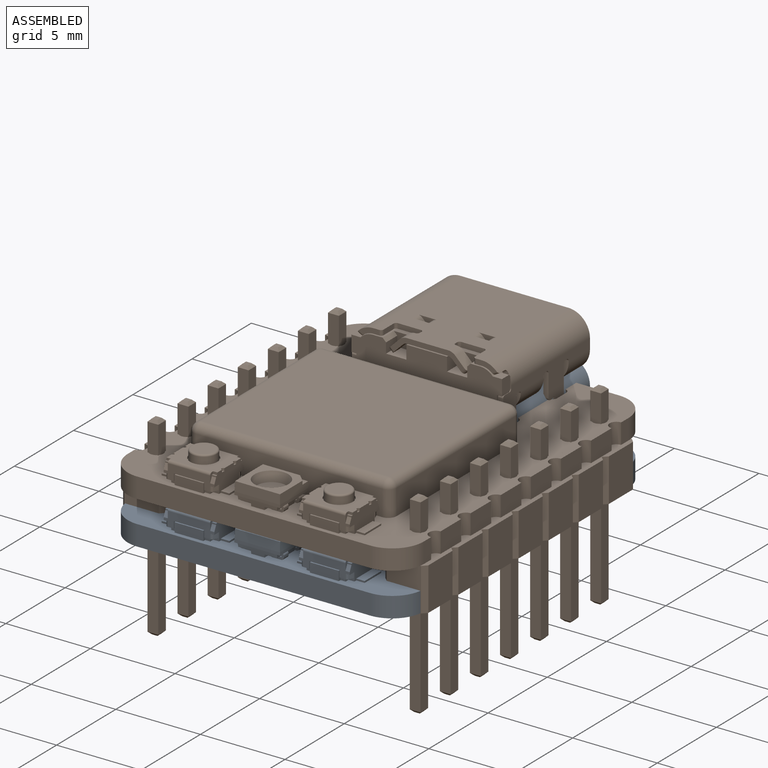
[diagram: assembled view]
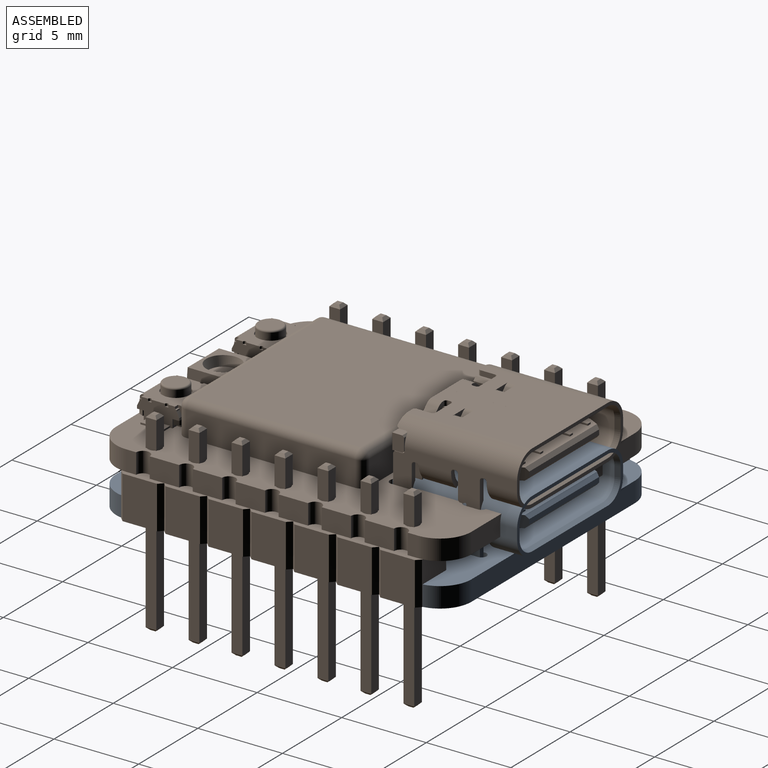
[diagram: assembled view, second angle]
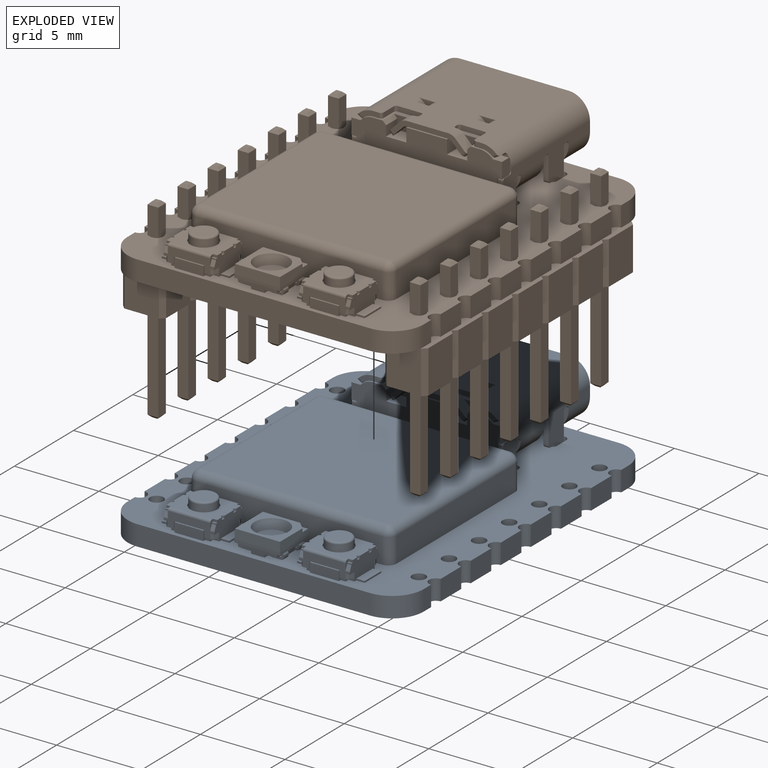
[diagram: exploded view]
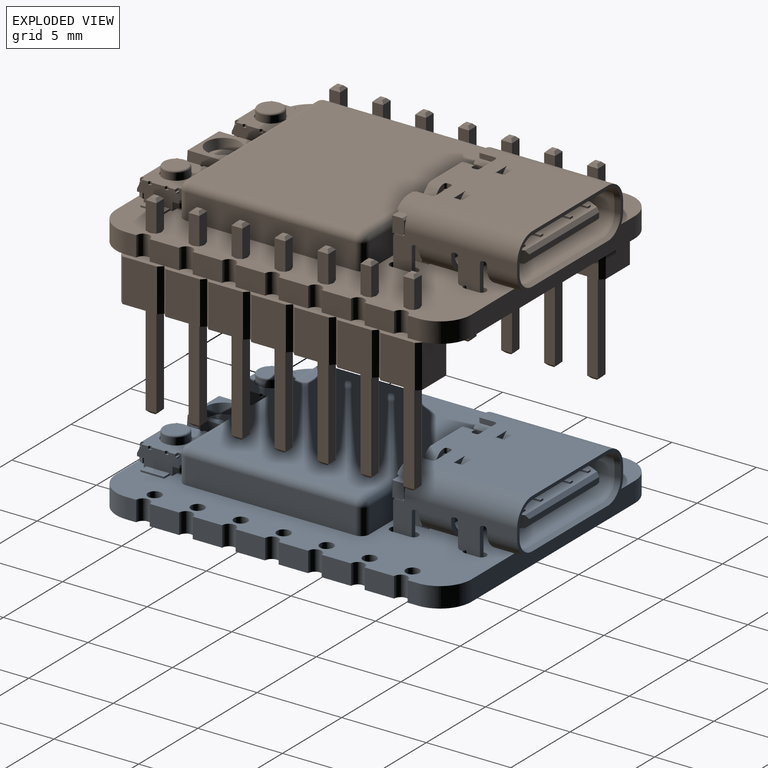
[diagram: exploded view, second angle]
FCSTD DOCUMENT  (FreeCAD 1.0R39319 (Git))
Label: Seeed_Studio_Xiao_RP2040
License: All rights reserved
LicenseURL: https://en.wikipedia.org/wiki/All_rights_reserved
objects: Part::Feature×51, Sketcher::SketchObject×17, App::Part×14, PartDesign::Pad×13, PartDesign::Mirrored×8, PartDesign::Body×7, PartDesign::SubShapeBinder×6, PartDesign::Pocket×5, Part::FeaturePython×4, PartDesign::Plane×3, PartDesign::LinearPattern×3, PartDesign::MultiTransform×3, Part::Mirroring×3, Part::MultiFuse×3, App::DocumentObjectGroup×2, PartDesign::Fillet×1, App::Link×1, PartDesign::Chamfer×1
note: 199 computed .brp shape members not serialized (recipe doc carries the construction recipe); baked Part::Feature solids carry a one-line shape summary decoded from their .brp

FEATURE [Sketcher::SketchObject] Sketch
  ArcFitTolerance = 1e-06
  AttachmentSupport = -> [XY_Plane001]
  FullyConstrained = true
  MakeInternals = false
  MapMode = 5
  sketch-geometry (10):
    g0: LineSegment StartX=-6.87 StartY=-10.5 StartZ=0 EndX=6.87 EndY=-10.5 EndZ=0
    g1: LineSegment StartX=8.75 StartY=-8.62 StartZ=0 EndX=8.75 EndY=8.62 EndZ=0
    g2: LineSegment StartX=6.87 StartY=10.5 StartZ=0 EndX=-6.87 EndY=10.5 EndZ=0
    g3: LineSegment StartX=-8.75 StartY=8.62 StartZ=0 EndX=-8.75 EndY=-8.62 EndZ=0
    g4: ArcOfCircle CenterX=-6.87 CenterY=-8.62 CenterZ=0 NormalX=0 NormalY=0 NormalZ=1 AngleXU=0 Radius=1.88 StartAngle=3.14159 EndAngle=4.71239
    g5: ArcOfCircle CenterX=6.87 CenterY=-8.62 CenterZ=0 NormalX=0 NormalY=0 NormalZ=1 AngleXU=0 Radius=1.88 StartAngle=4.71239 EndAngle=6.28319
    g6: ArcOfCircle CenterX=6.87 CenterY=8.62 CenterZ=0 NormalX=0 NormalY=0 NormalZ=1 AngleXU=0 Radius=1.88 StartAngle=4.83e-14 EndAngle=1.5708
    g7: ArcOfCircle CenterX=-6.87 CenterY=8.62 CenterZ=0 NormalX=0 NormalY=0 NormalZ=1 AngleXU=0 Radius=1.88 StartAngle=1.5708 EndAngle=3.14159
    g8: GeomPoint [constr] X=8.75 Y=10.5 Z=0
    g9: GeomPoint [constr] X=0 Y=0 Z=0
  constraints (22):
    c: Tangent(g0,g4) = -1.5708
    c: Tangent(g0,g5) = -1.5708
    c: Tangent(g1,g5) = -1.5708
    c: Tangent(g1,g6) = -1.5708
    c: Tangent(g2,g6) = -1.5708
    c: Tangent(g2,g7) = -1.5708
    c: Tangent(g3,g7) = -1.5708
    c: Tangent(g3,g4) = -1.5708
    c: Horizontal(g0)
    c: Horizontal(g2)
    c: Vertical(g1)
    c: Vertical(g3)
    c: Equal(g4,g5)
    c: Equal(g5,g6)
    c: Equal(g6,g7)
    c: Symmetric(g2,g0,g9)
    c: PointOnObject(g8,g1)
    c: PointOnObject(g8,g2)
    c: Distance(g1,g3) = 17.5
    c: Distance(g0,g2) = 21
    c: Radius(g5) = 1.88
    c: Coincident(g9,g-1)
FEATURE [PartDesign::Pad] Pad  label="Pad-Main"
  Direction = (0,0,1)
  Length = 1.2
  Length2 = 10
  Profile = -> Sketch
  ReferenceAxis = -> Sketch [N_Axis]
  Refine = true
  Suppressed = false
  Type = 0
FEATURE [PartDesign::SubShapeBinder] Binder
  BindCopyOnChange = 0
  BindMode = 0
  ClaimChildren = false
  Context = -> Part [Part001.Body001.Binder.]
  Fuse = false
  MakeFace = true
  OffsetFill = false
  OffsetIntersection = false
  OffsetJoinType = 0
  OffsetOpenResult = false
  PartialLoad = false
  Refine = true
  Relative = true
  Support = -> [Body]
  _Version = 2
FEATURE [Sketcher::SketchObject] Sketch001
  ArcFitTolerance = 1e-06
  AttachmentSupport = -> [XY_Plane002]
  ExternalGeometry = -> [Binder]
  FullyConstrained = true
  MakeInternals = false
  MapMode = 5
  sketch-geometry (7):
    g0: LineSegment StartX=-8.75 StartY=8.62 StartZ=0 EndX=-7.75 EndY=8.62 EndZ=0
    g1: LineSegment StartX=-8.75 StartY=8.62 StartZ=0 EndX=-8.75 EndY=8.02 EndZ=0
    g2: LineSegment StartX=-8.75 StartY=7.22 StartZ=0 EndX=-8.75 EndY=6.62 EndZ=0
    g3: LineSegment StartX=-8.75 StartY=6.62 StartZ=0 EndX=-7.75 EndY=6.62 EndZ=0
    g4: ArcOfCircle CenterX=-8.75 CenterY=7.62 CenterZ=0 NormalX=0 NormalY=0 NormalZ=1 AngleXU=0 Radius=0.4 StartAngle=4.71239 EndAngle=7.85398
    g5: ArcOfCircle CenterX=-7.75 CenterY=7.62 CenterZ=0 NormalX=0 NormalY=0 NormalZ=1 AngleXU=0 Radius=1 StartAngle=4.71239 EndAngle=7.85398
    g6: Circle CenterX=-7.75 CenterY=7.62 CenterZ=0 NormalX=0 NormalY=0 NormalZ=1 AngleXU=0 Radius=0.4
  constraints (19):
    c: Horizontal(g0)
    c: Coincident(g1,g0)
    c: PointOnObject(g1,g-4)
    c: PointOnObject(g2,g-4)
    c: PointOnObject(g2,g-4)
    c: Coincident(g3,g2)
    c: Horizontal(g3)
    c: Coincident(g4,g1)
    c: Coincident(g4,g2)
    c: Tangent(g5,g3) = -1.5708
    c: Tangent(g5,g0) = 1.5708
    c: Perpendicular(g4,g2)
    c: Radius(g5) = 1
    c: Coincident(g6,g5)
    c: Diameter(g6) = 0.8
    c: Equal(g6,g4)
    c: Coincident(g0,g-4)
    c: Horizontal(g4,g5)
    c: DistanceX(g0,g0) = 1
FEATURE [PartDesign::Pad] Pad001  label="Pad-Bottom"
  Direction = (0,0,1)
  Length = 0.035
  Length2 = 10
  Profile = -> Sketch001
  ReferenceAxis = -> Sketch001 [N_Axis]
  Refine = true
  Suppressed = false
  Type = 0
FEATURE [Sketcher::SketchObject] Sketch002
  ArcFitTolerance = 1e-06
  AttachmentSupport = -> [XY_Plane002]
  ExternalGeometry = -> [Pad001]
  FullyConstrained = true
  MakeInternals = false
  MapMode = 5
  sketch-geometry (9):
    g0: LineSegment StartX=-8.75 StartY=6.62 StartZ=0 EndX=-8.75 EndY=7.22 EndZ=0
    g1: LineSegment StartX=-8.75 StartY=8.02 StartZ=0 EndX=-8.75 EndY=8.62 EndZ=0
    g2: LineSegment StartX=-8.75 StartY=8.62 StartZ=0 EndX=-8.715 EndY=8.62 EndZ=0
    g3: LineSegment StartX=-8.715 StartY=8.62 StartZ=0 EndX=-8.715 EndY=8.05359 EndZ=0
    g4: LineSegment StartX=-8.715 StartY=7.18641 StartZ=0 EndX=-8.715 EndY=6.62 EndZ=0
    g5: LineSegment StartX=-8.715 StartY=6.62 StartZ=0 EndX=-8.75 EndY=6.62 EndZ=0
    g6: ArcOfCircle CenterX=-8.75 CenterY=7.62 CenterZ=0 NormalX=0 NormalY=0 NormalZ=1 AngleXU=0 Radius=0.4 StartAngle=4.71239 EndAngle=7.85398
    g7: ArcOfCircle CenterX=-8.75 CenterY=7.62 CenterZ=0 NormalX=0 NormalY=0 NormalZ=1 AngleXU=0 Radius=0.435 StartAngle=4.79294 EndAngle=7.77343
    g8: LineSegment [constr] StartX=-8.315 StartY=7.62 StartZ=0 EndX=-8.35 EndY=7.62 EndZ=0
  constraints (25):
    c: Coincident(g0,g-5)
    c: Coincident(g0,g-3)
    c: Coincident(g1,g-3)
    c: Coincident(g1,g-4)
    c: Coincident(g2,g1)
    c: Coincident(g3,g2)
    c: Vertical(g3)
    c: Vertical(g4)
    c: Coincident(g5,g4)
    c: Coincident(g5,g0)
    c: Coincident(g6,g1)
    c: Coincident(g6,g0)
    c: Coincident(g7,g3)
    c: Coincident(g7,g4)
    c: Horizontal(g2)
    c: Horizontal(g5)
    c: Coincident(g7,g-3)
    c: Coincident(g7,g6)
    c: DistanceX(g5,g5) = 0.035
    c: Equal(g5,g2)
    c: PointOnObject(g8,g7)
    c: PointOnObject(g8,g6)
    c: Perpendicular(g6,g8)
    c: Equal(g8,g2)
    c: Horizontal(g8)
FEATURE [Sketcher::SketchObject] Sketch005
  ArcFitTolerance = 1e-06
  AttachmentSupport = -> [XY_Plane001]
  ExternalGeometry = -> [Pad]
  FullyConstrained = true
  MakeInternals = false
  MapMode = 5
  sketch-geometry (7):
    g0: LineSegment StartX=-8.75 StartY=8.62 StartZ=0 EndX=-7.75 EndY=8.62 EndZ=0
    g1: LineSegment StartX=-8.75 StartY=8.62 StartZ=0 EndX=-8.75 EndY=8.0375 EndZ=0
    g2: LineSegment StartX=-8.75 StartY=7.2025 StartZ=0 EndX=-8.75 EndY=6.62 EndZ=0
    g3: LineSegment StartX=-8.75 StartY=6.62 StartZ=0 EndX=-7.75 EndY=6.62 EndZ=0
    g4: ArcOfCircle CenterX=-8.75 CenterY=7.62 CenterZ=0 NormalX=0 NormalY=0 NormalZ=1 AngleXU=0 Radius=0.4175 StartAngle=4.71239 EndAngle=7.85398
    g5: ArcOfCircle CenterX=-7.75 CenterY=7.62 CenterZ=0 NormalX=0 NormalY=0 NormalZ=1 AngleXU=0 Radius=1 StartAngle=4.71239 EndAngle=7.85398
    g6: Circle CenterX=-7.75 CenterY=7.62 CenterZ=0 NormalX=0 NormalY=0 NormalZ=1 AngleXU=0 Radius=0.4175
  constraints (19):
    c: Horizontal(g0)
    c: Coincident(g1,g0)
    c: Coincident(g3,g2)
    c: Horizontal(g3)
    c: Coincident(g4,g1)
    c: Coincident(g4,g2)
    c: Tangent(g5,g3) = -1.5708
    c: Tangent(g5,g0) = 1.5708
    c: Perpendicular(g4,g2)
    c: Radius(g5) = 1
    c: Coincident(g6,g5)
    c: Diameter(g6) = 0.835
    c: Equal(g6,g4)
    c: Horizontal(g4,g5)
    c: DistanceX(g0,g0) = 1
    c: Vertical(g1)
    c: Vertical(g2)
    c: Perpendicular(g4,g1)
    c: Coincident(g0,g-3)
FEATURE [PartDesign::Plane] DatumPlane
  AttachmentOffset = pos=(0,0,0.6) rot=(0,0,1;0rad)
  AttachmentSupport = -> [XY_Plane001]
  Length = 60
  MapMode = 5
  Placement = pos=(0,0,0.6) rot=(0,0,1;0rad)
  ResizeMode = 0
  Width = 60
FEATURE [Sketcher::SketchObject] Sketch006
  ArcFitTolerance = 1e-06
  AttachmentSupport = -> [XY_Plane001]
  ExternalGeometry = -> [Pad]
  FullyConstrained = true
  MakeInternals = false
  MapMode = 5
  sketch-geometry (7):
    g0: LineSegment StartX=-8.75 StartY=8.62 StartZ=0 EndX=-8.715 EndY=8.62 EndZ=0
    g1: LineSegment StartX=-8.715 StartY=8.62 StartZ=0 EndX=-8.715 EndY=8.05359 EndZ=0
    g2: LineSegment StartX=-8.75 StartY=8.62 StartZ=0 EndX=-8.75 EndY=6.62 EndZ=0
    g3: LineSegment StartX=-8.75 StartY=6.62 StartZ=0 EndX=-8.715 EndY=6.62 EndZ=0
    g4: LineSegment StartX=-8.715 StartY=6.62 StartZ=0 EndX=-8.715 EndY=7.18641 EndZ=0
    g5: Circle CenterX=-7.75 CenterY=7.62 CenterZ=0 NormalX=0 NormalY=0 NormalZ=1 AngleXU=0 Radius=0.435
    g6: ArcOfCircle CenterX=-8.75 CenterY=7.62 CenterZ=0 NormalX=0 NormalY=0 NormalZ=1 AngleXU=0 Radius=0.435 StartAngle=4.79294 EndAngle=7.77343
  constraints (21):
    c: Coincident(g0,g-3)
    c: Horizontal(g0)
    c: Coincident(g1,g0)
    c: Vertical(g1)
    c: Coincident(g2,g0)
    c: PointOnObject(g2,g-3)
    c: Coincident(g3,g2)
    c: Coincident(g4,g3)
    c: Vertical(g4)
    c: Coincident(g6,g1)
    c: Coincident(g6,g4)
    c: PointOnObject(g6,g2)
    c: Equal(g1,g4)
    c: DistanceY(g2,g2) = 2
    c: Distance(g3,g3) = 0.035
    c: Equal(g3,g0)
    c: Diameter(g5) = 0.87
    c: Equal(g5,g6)
    c: Horizontal(g6,g5)
    c: DistanceX(g6,g5) = 1
    c: Horizontal(g3)
FEATURE [PartDesign::Pocket] Pocket  label="Pocket-PadBottom"
  BaseFeature = -> Pad
  Direction = (0,0,-1)
  Length = 0.035
  Length2 = 5
  Profile = -> Sketch005
  ReferenceAxis = -> Sketch005 [N_Axis]
  Refine = true
  Reversed = true
  Suppressed = false
  Type = 0
FEATURE [PartDesign::Pocket] Pocket001  label="Pocket-PadSide"
  BaseFeature = -> Pocket
  Direction = (0,0,-1)
  Length = 0
  Length2 = 5
  Profile = -> Sketch006
  ReferenceAxis = -> Sketch006 [N_Axis]
  Refine = true
  Reversed = true
  Suppressed = false
  Type = 3
  UpToFace = -> Pocket [Face5]
FEATURE [PartDesign::Mirrored] Mirrored
  MirrorPlane = -> DatumPlane
  Refine = true
  Suppressed = false
  TransformMode = 0
FEATURE [PartDesign::LinearPattern] LinearPattern
  Direction = -> Y_Axis001
  Length = 15.24
  Mode = 1
  Occurrences = 7
  Offset = 2.54
  Refine = true
  Reversed = true
  Suppressed = false
  TransformMode = 0
FEATURE [PartDesign::Mirrored] Mirrored001
  MirrorPlane = -> YZ_Plane001
  Refine = true
  Suppressed = false
  TransformMode = 0
FEATURE [PartDesign::MultiTransform] MultiTransform  label="MultiTransform-PadTop+Bottom"
  BaseFeature = -> Pocket001
  Originals = -> [Pocket]
  Refine = true
  Suppressed = false
  TransformMode = 0
  Transformations = -> [Mirrored,LinearPattern,Mirrored001]
FEATURE [PartDesign::LinearPattern] LinearPattern001
  Direction = -> Y_Axis001
  Length = 15.24
  Mode = 1
  Occurrences = 7
  Offset = 2.54
  Refine = true
  Reversed = true
  Suppressed = false
  TransformMode = 0
FEATURE [PartDesign::Mirrored] Mirrored002
  MirrorPlane = -> YZ_Plane001
  Refine = true
  Suppressed = false
  TransformMode = 0
FEATURE [PartDesign::MultiTransform] MultiTransform001  label="MultiTransform-PadSide"
  BaseFeature = -> MultiTransform
  Originals = -> [Pocket001]
  Refine = true
  Suppressed = false
  TransformMode = 0
  Transformations = -> [LinearPattern001,Mirrored002]
FEATURE [PartDesign::Pad] Pad002  label="Pad-Edge"
  BaseFeature = -> Pad001
  Direction = (0,0,1)
  Length = 10
  Length2 = 10
  Profile = -> Sketch002
  ReferenceAxis = -> Sketch002 [N_Axis]
  Refine = true
  Suppressed = false
  Type = 3
  UpToFace = -> MultiTransform001 [Face9]
FEATURE [Sketcher::SketchObject] Sketch003
  ArcFitTolerance = 1e-06
  AttachmentSupport = -> [Binder]
  ExternalGeometry = -> [Binder,Pad002]
  FullyConstrained = true
  MakeInternals = false
  MapMode = 5
  Placement = pos=(0,0,1.2) rot=(0,0,1;0rad)
  sketch-geometry (7):
    g0: LineSegment StartX=-8.75 StartY=8.62 StartZ=0 EndX=-7.75 EndY=8.62 EndZ=0
    g1: LineSegment StartX=-8.75 StartY=8.62 StartZ=0 EndX=-8.75 EndY=8.02 EndZ=0
    g2: LineSegment StartX=-8.75 StartY=7.22 StartZ=0 EndX=-8.75 EndY=6.62 EndZ=0
    g3: LineSegment StartX=-8.75 StartY=6.62 StartZ=0 EndX=-7.75 EndY=6.62 EndZ=0
    g4: ArcOfCircle CenterX=-8.75 CenterY=7.62 CenterZ=0 NormalX=0 NormalY=0 NormalZ=1 AngleXU=0 Radius=0.4 StartAngle=4.71239 EndAngle=7.85398
    g5: ArcOfCircle CenterX=-7.75 CenterY=7.62 CenterZ=0 NormalX=0 NormalY=0 NormalZ=1 AngleXU=0 Radius=1 StartAngle=4.71239 EndAngle=7.85398
    g6: Circle CenterX=-7.75 CenterY=7.62 CenterZ=0 NormalX=0 NormalY=0 NormalZ=1 AngleXU=0 Radius=0.4
  constraints (19):
    c: Horizontal(g0)
    c: Coincident(g1,g0)
    c: PointOnObject(g1,g-4)
    c: PointOnObject(g2,g-4)
    c: PointOnObject(g2,g-4)
    c: Coincident(g3,g2)
    c: Horizontal(g3)
    c: Coincident(g4,g1)
    c: Coincident(g4,g2)
    c: Tangent(g5,g3) = -1.5708
    c: Tangent(g5,g0) = 1.5708
    c: Perpendicular(g4,g2)
    c: Coincident(g6,g5)
    c: Equal(g6,g4)
    c: Coincident(g0,g-4)
    c: Horizontal(g4,g5)
    c: Equal(g5,g-5)
    c: Equal(g0,g-6)
    c: Equal(g-7,g6)
FEATURE [PartDesign::Pad] Pad003  label="Pad-Top"
  BaseFeature = -> Pad002
  Direction = (0,0,1)
  Length = 0.035
  Length2 = 10
  Profile = -> Sketch003
  ReferenceAxis = -> Sketch003 [N_Axis]
  Refine = true
  Reversed = true
  Suppressed = false
  Type = 0
FEATURE [Sketcher::SketchObject] Sketch004
  ArcFitTolerance = 1e-06
  AttachmentSupport = -> [XY_Plane002]
  ExternalGeometry = -> [Pad003]
  FullyConstrained = true
  MakeInternals = false
  MapMode = 5
  sketch-geometry (2):
    g0: Circle CenterX=-7.75 CenterY=7.62 CenterZ=0 NormalX=0 NormalY=0 NormalZ=1 AngleXU=0 Radius=0.4
    g1: Circle CenterX=-7.75 CenterY=7.62 CenterZ=0 NormalX=0 NormalY=0 NormalZ=1 AngleXU=0 Radius=0.435
  constraints (4):
    c: Coincident(g0,g-3)
    c: Equal(g-3,g0)
    c: Coincident(g1,g0)
    c: Distance(g0,g1) = 0.035
FEATURE [PartDesign::Pad] Pad004  label="Pad-Hole"
  BaseFeature = -> Pad003
  Direction = (0,0,1)
  Length = 10
  Length2 = 10
  Profile = -> Sketch004
  ReferenceAxis = -> Sketch004 [N_Axis]
  Refine = true
  Suppressed = false
  Type = 3
  UpToFace = -> Pad003 [Face11]
FEATURE [PartDesign::Body] Body001  label="CastellatedPad"
  AllowCompound = false
  Group = -> [Binder,Sketch001,Pad001,Sketch002,Pad002,Sketch003,Pad003,Sketch004,Pad004]
  Origin = -> Origin002
  Tip = -> Pad004
FEATURE [Part::FeaturePython] Array  # Draft array (typed FeaturePython)
  AlwaysSyncPlacement = false
  Angle = 360
  ArrayType = 0
  Axis = (0,0,1)
  Base = -> Body001
  Center = (0,0,0)
  Count = 7
  ExpandArray = false
  Fuse = true
  IntervalAxis = (0,0,0)
  IntervalX = (100,0,0)
  IntervalY = (0,-2.54,0)
  IntervalZ = (0,0,100)
  NumberCircles = 3
  NumberPolar = 5
  NumberX = 1
  NumberY = 7
  NumberZ = 1
  PlacementList = 7 placements: arithmetic series from (0,0,0) step (0,-2.54,0) to (0,-15.24,0)
  RadialDistance = 50
  ScaleList = (7) [(1,1,1),(1,1,1),(1,1,1),(1,1,1),(1,1,1),(1,1,1),(1,1,1)]
  Symmetry = 1
  TangentialDistance = 25
FEATURE [Part::Mirroring] Mirror  label="Array (mirrored)"
  Base = (0,0,0)
  Normal = (1,0,0)
  Source = -> Array
FEATURE [Part::MultiFuse] Fusion  label="CastellatedPads"
  Refine = true
  Shapes = -> [Array,Mirror]
FEATURE [PartDesign::SubShapeBinder] Binder001
  BindCopyOnChange = 0
  BindMode = 0
  ClaimChildren = false
  Context = -> Part [Body002.Binder001.]
  Fuse = false
  MakeFace = true
  OffsetFill = false
  OffsetIntersection = false
  OffsetJoinType = 0
  OffsetOpenResult = false
  PartialLoad = false
  Refine = true
  Relative = true
  Support = -> [Body]
  _Version = 2
FEATURE [Sketcher::SketchObject] Sketch007
  ArcFitTolerance = 1e-06
  AttachmentSupport = -> [Binder001]
  FullyConstrained = true
  MakeInternals = false
  MapMode = 5
  Placement = pos=(0,0,1.2) rot=(0,0,1;0rad)
  sketch-geometry (10):
    g0: LineSegment StartX=-5.5 StartY=-7.5 StartZ=0 EndX=5.5 EndY=-7.5 EndZ=0
    g1: LineSegment StartX=6 StartY=-7 StartZ=0 EndX=6 EndY=3 EndZ=0
    g2: LineSegment StartX=5.5 StartY=3.5 StartZ=0 EndX=-5.5 EndY=3.5 EndZ=0
    g3: LineSegment StartX=-6 StartY=3 StartZ=0 EndX=-6 EndY=-7 EndZ=0
    g4: ArcOfCircle CenterX=-5.5 CenterY=-7 CenterZ=0 NormalX=0 NormalY=0 NormalZ=1 AngleXU=0 Radius=0.5 StartAngle=3.14159 EndAngle=4.71239
    g5: ArcOfCircle CenterX=5.5 CenterY=-7 CenterZ=0 NormalX=0 NormalY=0 NormalZ=1 AngleXU=0 Radius=0.5 StartAngle=4.71239 EndAngle=6.28319
    g6: ArcOfCircle CenterX=5.5 CenterY=3 CenterZ=0 NormalX=0 NormalY=0 NormalZ=1 AngleXU=0 Radius=0.5 StartAngle=0 EndAngle=1.5708
    g7: ArcOfCircle CenterX=-5.5 CenterY=3 CenterZ=0 NormalX=0 NormalY=0 NormalZ=1 AngleXU=0 Radius=0.5 StartAngle=1.5708 EndAngle=3.14159
    g8: GeomPoint [constr] X=6 Y=3.5 Z=0
    g9: GeomPoint [constr] X=0 Y=-2 Z=0
  constraints (23):
    c: Tangent(g0,g4) = -1.5708
    c: Tangent(g0,g5) = -1.5708
    c: Tangent(g1,g5) = -1.5708
    c: Tangent(g1,g6) = -1.5708
    c: Tangent(g2,g6) = -1.5708
    c: Tangent(g2,g7) = -1.5708
    c: Tangent(g3,g7) = -1.5708
    c: Tangent(g3,g4) = -1.5708
    c: Horizontal(g0)
    c: Horizontal(g2)
    c: Vertical(g1)
    c: Vertical(g3)
    c: Equal(g4,g5)
    c: Equal(g5,g6)
    c: Equal(g6,g7)
    c: Symmetric(g2,g0,g9)
    c: PointOnObject(g8,g1)
    c: PointOnObject(g8,g2)
    c: Distance(g1,g3) = 12
    c: Distance(g0,g2) = 11
    c: Radius(g5) = 0.5
    c: PointOnObject(g9,g-2)
    c: Distance(g-1,g9) = 2
FEATURE [PartDesign::Pad] Pad005
  Direction = (0,0,1)
  Length = 2
  Length2 = 10
  Profile = -> Sketch007
  ReferenceAxis = -> Sketch007 [N_Axis]
  Refine = true
  Suppressed = false
  Type = 0
FEATURE [PartDesign::Fillet] Fillet
  Base = -> Pad005 [Face10]
  BaseFeature = -> Pad005
  Radius = 0.5
  Refine = true
  SupportTransform = false
  Suppressed = false
  UseAllEdges = false
FEATURE [PartDesign::Body] Body002  label="Shield"
  AllowCompound = false
  Group = -> [Binder001,Sketch007,Pad005,Fillet]
  Origin = -> Origin004
  Tip = -> Fillet
FEATURE [Part::Feature] Part__Feature001  label="Body"
  Placement = pos=(0,0,0.025) rot=(0,0,1;0rad)
  shape: bbox 2.7 x 2.4 x 1.1 mm, 37 faces (baked)
FEATURE [Part::Feature] Part__Feature002  label="Pins001"
  shape: bbox 0.7294 x 0.4 x 0.4 mm, 13 faces (baked)
FEATURE [Part::Feature] Part__Feature003  label="Pins002"
  shape: bbox 0.7294 x 0.4 x 0.4 mm, 13 faces (baked)
FEATURE [Part::Feature] Part__Feature004  label="Pins003"
  shape: bbox 0.7294 x 0.4 x 0.4 mm, 13 faces (baked)
FEATURE [Part::Feature] Part__Feature005  label="Pins004"
  shape: bbox 0.7294 x 0.4 x 0.4 mm, 13 faces (baked)
FEATURE [App::Part] Pins001  label="Pins005"
  Group = -> [Part__Feature002,Part__Feature003,Part__Feature004,Part__Feature005]
  Origin = -> Origin006
FEATURE [App::Part] Pins
  Group = -> [Pins001]
  Origin = -> Origin007
FEATURE [App::Part] WS2812C_2427  label="WS2812C-2427"
  Group = -> [Part__Feature001,Pins]
  Origin = -> Origin008
  Placement = pos=(0,-9,1.2) rot=(0,0,1;0rad)
FEATURE [Part::Feature] Part__Feature006  label="USB_C_Receptacle_16P_TopMnt_Horizontal_GCT_USB4105-xx-A"
  shape: bbox 0.25 x 2.4 x 0.1 mm, 6 faces (baked)
FEATURE [Part::Feature] Part__Feature007  label="USB_C_Receptacle_16P_TopMnt_Horizontal_GCT_USB4105-xx-A001"
  shape: bbox 0.25 x 2.4 x 0.1 mm, 6 faces (baked)
FEATURE [Part::Feature] Part__Feature008  label="USB_C_Receptacle_16P_TopMnt_Horizontal_GCT_USB4105-xx-A002"
  shape: bbox 0.25 x 1.9 x 0.1 mm, 6 faces (baked)
FEATURE [Part::Feature] Part__Feature009  label="USB_C_Receptacle_16P_TopMnt_Horizontal_GCT_USB4105-xx-A003"
  shape: bbox 0.25 x 1.9 x 0.1 mm, 6 faces (baked)
FEATURE [Part::Feature] Part__Feature010  label="USB_C_Receptacle_16P_TopMnt_Horizontal_GCT_USB4105-xx-A004"
  shape: bbox 0.25 x 2.4 x 0.1 mm, 6 faces (baked)
FEATURE [Part::Feature] Part__Feature011  label="USB_C_Receptacle_16P_TopMnt_Horizontal_GCT_USB4105-xx-A005"
  shape: bbox 0.25 x 2.4 x 0.1 mm, 6 faces (baked)
FEATURE [Part::Feature] Part__Feature012  label="USB_C_Receptacle_16P_TopMnt_Horizontal_GCT_USB4105-xx-A006"
  shape: bbox 0.25 x 1.9 x 0.1 mm, 6 faces (baked)
FEATURE [Part::Feature] Part__Feature013  label="USB_C_Receptacle_16P_TopMnt_Horizontal_GCT_USB4105-xx-A007"
  shape: bbox 0.25 x 1.9 x 0.1 mm, 6 faces (baked)
FEATURE [Part::Feature] Part__Feature014  label="USB_C_Receptacle_16P_TopMnt_Horizontal_GCT_USB4105-xx-A008"
  shape: bbox 4.45 x 7.05 x 3.59 mm, 66 faces (baked)
FEATURE [Part::Feature] Part__Feature015  label="USB_C_Receptacle_16P_TopMnt_Horizontal_GCT_USB4105-xx-A009"
  shape: bbox 0.2 x 0.8 x 0.12 mm, 6 faces (baked)
FEATURE [Part::Feature] Part__Feature016  label="USB_C_Receptacle_16P_TopMnt_Horizontal_GCT_USB4105-xx-A010"
  shape: bbox 0.2 x 0.8 x 0.12 mm, 6 faces (baked)
FEATURE [Part::Feature] Part__Feature017  label="USB_C_Receptacle_16P_TopMnt_Horizontal_GCT_USB4105-xx-A011"
  shape: bbox 0.2 x 0.8 x 0.12 mm, 6 faces (baked)
FEATURE [Part::Feature] Part__Feature018  label="USB_C_Receptacle_16P_TopMnt_Horizontal_GCT_USB4105-xx-A012"
  shape: bbox 0.2 x 0.8 x 0.12 mm, 6 faces (baked)
FEATURE [Part::Feature] Part__Feature019  label="USB_C_Receptacle_16P_TopMnt_Horizontal_GCT_USB4105-xx-A013"
  shape: bbox 0.2 x 0.8 x 0.12 mm, 6 faces (baked)
FEATURE [Part::Feature] Part__Feature020  label="USB_C_Receptacle_16P_TopMnt_Horizontal_GCT_USB4105-xx-A014"
  shape: bbox 0.2 x 0.8 x 0.12 mm, 6 faces (baked)
FEATURE [Part::Feature] Part__Feature021  label="USB_C_Receptacle_16P_TopMnt_Horizontal_GCT_USB4105-xx-A015"
  shape: bbox 0.2 x 0.8 x 0.12 mm, 6 faces (baked)
FEATURE [Part::Feature] Part__Feature022  label="USB_C_Receptacle_16P_TopMnt_Horizontal_GCT_USB4105-xx-A016"
  shape: bbox 0.2 x 0.8 x 0.12 mm, 6 faces (baked)
FEATURE [Part::Feature] Part__Feature023  label="USB_C_Receptacle_16P_TopMnt_Horizontal_GCT_USB4105-xx-A017"
  shape: bbox 4.47 x 7.33 x 4.26 mm, 161 faces (baked)
FEATURE [Part::Feature] Part__Feature024  label="USB_C_Receptacle_16P_TopMnt_Horizontal_GCT_USB4105-xx-A018"
  shape: bbox 0.25 x 2.4 x 0.1 mm, 6 faces (baked)
FEATURE [Part::Feature] Part__Feature025  label="USB_C_Receptacle_16P_TopMnt_Horizontal_GCT_USB4105-xx-A019"
  shape: bbox 0.25 x 2.4 x 0.1 mm, 6 faces (baked)
FEATURE [Part::Feature] Part__Feature026  label="USB_C_Receptacle_16P_TopMnt_Horizontal_GCT_USB4105-xx-A020"
  shape: bbox 0.25 x 1.9 x 0.1 mm, 6 faces (baked)
FEATURE [Part::Feature] Part__Feature027  label="USB_C_Receptacle_16P_TopMnt_Horizontal_GCT_USB4105-xx-A021"
  shape: bbox 0.25 x 1.9 x 0.1 mm, 6 faces (baked)
FEATURE [Part::Feature] Part__Feature028  label="USB_C_Receptacle_16P_TopMnt_Horizontal_GCT_USB4105-xx-A022"
  shape: bbox 0.25 x 2.4 x 0.1 mm, 6 faces (baked)
FEATURE [Part::Feature] Part__Feature029  label="USB_C_Receptacle_16P_TopMnt_Horizontal_GCT_USB4105-xx-A023"
  shape: bbox 0.25 x 2.4 x 0.1 mm, 6 faces (baked)
FEATURE [Part::Feature] Part__Feature030  label="USB_C_Receptacle_16P_TopMnt_Horizontal_GCT_USB4105-xx-A024"
  shape: bbox 0.25 x 1.9 x 0.1 mm, 6 faces (baked)
FEATURE [Part::Feature] Part__Feature031  label="USB_C_Receptacle_16P_TopMnt_Horizontal_GCT_USB4105-xx-A025"
  shape: bbox 0.25 x 1.9 x 0.1 mm, 6 faces (baked)
FEATURE [Part::Feature] Part__Feature032  label="USB_C_Receptacle_16P_TopMnt_Horizontal_GCT_USB4105-xx-A026"
  shape: bbox 4.45 x 7.05 x 3.59 mm, 66 faces (baked)
FEATURE [Part::Feature] Part__Feature033  label="USB_C_Receptacle_16P_TopMnt_Horizontal_GCT_USB4105-xx-A027"
  shape: bbox 0.2 x 0.8 x 0.12 mm, 6 faces (baked)
FEATURE [Part::Feature] Part__Feature034  label="USB_C_Receptacle_16P_TopMnt_Horizontal_GCT_USB4105-xx-A028"
  shape: bbox 0.2 x 0.8 x 0.12 mm, 6 faces (baked)
FEATURE [Part::Feature] Part__Feature035  label="USB_C_Receptacle_16P_TopMnt_Horizontal_GCT_USB4105-xx-A029"
  shape: bbox 0.2 x 0.8 x 0.12 mm, 6 faces (baked)
FEATURE [Part::Feature] Part__Feature036  label="USB_C_Receptacle_16P_TopMnt_Horizontal_GCT_USB4105-xx-A030"
  shape: bbox 0.2 x 0.8 x 0.12 mm, 6 faces (baked)
FEATURE [Part::Feature] Part__Feature037  label="USB_C_Receptacle_16P_TopMnt_Horizontal_GCT_USB4105-xx-A031"
  shape: bbox 0.2 x 0.8 x 0.12 mm, 6 faces (baked)
FEATURE [Part::Feature] Part__Feature038  label="USB_C_Receptacle_16P_TopMnt_Horizontal_GCT_USB4105-xx-A032"
  shape: bbox 0.2 x 0.8 x 0.12 mm, 6 faces (baked)
FEATURE [Part::Feature] Part__Feature039  label="USB_C_Receptacle_16P_TopMnt_Horizontal_GCT_USB4105-xx-A033"
  shape: bbox 0.2 x 0.8 x 0.12 mm, 6 faces (baked)
FEATURE [Part::Feature] Part__Feature040  label="USB_C_Receptacle_16P_TopMnt_Horizontal_GCT_USB4105-xx-A034"
  shape: bbox 0.2 x 0.8 x 0.12 mm, 6 faces (baked)
FEATURE [Part::Feature] Part__Feature041  label="USB_C_Receptacle_16P_TopMnt_Horizontal_GCT_USB4105-xx-A035"
  shape: bbox 4.47 x 7.33 x 4.26 mm, 161 faces (baked)
FEATURE [App::Part] USB_C_Receptacle_16P_TopMnt_Horizontal_GCT_USB4105_xx_A  label="USB_C_Receptacle_16P_TopMnt_Horizontal_GCT_USB4105-xx-A036"
  Group = -> [Part__Feature006,Part__Feature007,Part__Feature008,Part__Feature009,Part__Feature010,Part__Feature011,Part__Feature012,Part__Feature013,Part__Feature014,Part__Feature015,Part__Feature016,Part__Feature017,Part__Feature018,Part__Feature019,Part__Feature020,Part__Feature021,Part__Feature022,Part__Feature023,Part__Feature024,Part__Feature025,Part__Feature026,Part__Feature027,Part__Feature028,+13 more]
  Origin = -> Origin009
  Placement = pos=(0,7.825,1.2) rot=(0,0,1;3.14159rad)
FEATURE [Sketcher::SketchObject] Sketch008
  ArcFitTolerance = 1e-06
  AttachmentSupport = -> [MultiTransform001]
  FullyConstrained = true
  MakeInternals = false
  MapMode = 5
  Placement = pos=(0,0,1.2) rot=(0,0,1;0rad)
  sketch-geometry (14):
    g0: GeomPoint X=0 Y=7.825 Z=0
    g1: Circle CenterX=-2.89 CenterY=5.22 CenterZ=0 NormalX=0 NormalY=0 NormalZ=1 AngleXU=0 Radius=0.325
    g2: ArcOfCircle CenterX=-4.32 CenterY=4.17 CenterZ=0 NormalX=0 NormalY=0 NormalZ=1 AngleXU=0 Radius=0.335 StartAngle=3.14159 EndAngle=6.28319
    g3: ArcOfCircle CenterX=-4.32 CenterY=5.27 CenterZ=0 NormalX=0 NormalY=0 NormalZ=1 AngleXU=0 Radius=0.335 StartAngle=-9e-16 EndAngle=3.14159
    g4: LineSegment StartX=-4.655 StartY=4.17 StartZ=0 EndX=-4.655 EndY=5.27 EndZ=0
    g5: LineSegment StartX=-3.985 StartY=4.17 StartZ=0 EndX=-3.985 EndY=5.27 EndZ=0
    g6: LineSegment [constr] StartX=-4.32 StartY=5.605 StartZ=0 EndX=-4.32 EndY=3.835 EndZ=0
    g7: GeomPoint [constr] X=-4.32 Y=4.72 Z=0
    g8: ArcOfCircle CenterX=-4.32 CenterY=8.5175 CenterZ=0 NormalX=0 NormalY=0 NormalZ=1 AngleXU=0 Radius=0.335 StartAngle=3.14159 EndAngle=6.28319
    g9: ArcOfCircle CenterX=-4.32 CenterY=9.2825 CenterZ=0 NormalX=0 NormalY=0 NormalZ=1 AngleXU=0 Radius=0.335 StartAngle=1.8e-15 EndAngle=3.14159
    g10: LineSegment StartX=-4.655 StartY=8.5175 StartZ=0 EndX=-4.655 EndY=9.2825 EndZ=0
    g11: LineSegment StartX=-3.985 StartY=8.5175 StartZ=0 EndX=-3.985 EndY=9.2825 EndZ=0
    g12: LineSegment [constr] StartX=-4.32 StartY=9.6175 StartZ=0 EndX=-4.32 EndY=8.1825 EndZ=0
    g13: GeomPoint [constr] X=-4.32 Y=8.9 Z=0
  constraints (35):
    c: PointOnObject(g0,g-2)
    c: DistanceY(g-1,g0) = 7.825
    c: Diameter(g1) = 0.65
    c: DistanceX(g1,g0) = 2.89
    c: DistanceY(g1,g0) = 2.605
    c: Tangent(g2,g4) = 1.5708
    c: Tangent(g2,g5) = -1.5708
    c: Tangent(g3,g4) = 1.5708
    c: Tangent(g3,g5) = -1.5708
    c: Equal(g2,g3)
    c: Vertical(g4)
    c: Radius(g3) = 0.335
    c: PointOnObject(g6,g3)
    c: PointOnObject(g6,g2)
    c: Vertical(g6)
    c: DistanceY(g6,g6) = 1.77
    c: Perpendicular(g3,g6)
    c: Symmetric(g6,g6,g7)
    c: DistanceX(g7,g-1) = 4.32
    c: DistanceY(g7,g0) = 3.105
    c: Tangent(g8,g10) = 1.5708
    c: Tangent(g8,g11) = -1.5708
    c: Tangent(g9,g10) = 1.5708
    c: Tangent(g9,g11) = -1.5708
    c: Equal(g8,g9)
    c: Vertical(g11)
    c: Equal(g8,g3)
    c: PointOnObject(g12,g9)
    c: PointOnObject(g12,g8)
    c: Vertical(g12)
    c: Symmetric(g12,g12,g13)
    c: DistanceY(g0,g13) = 1.075
    c: DistanceY(g12,g12) = 1.435
    c: Vertical(g13,g7)
    c: Perpendicular(g9,g12)
FEATURE [PartDesign::Pocket] Pocket002  label="Pocket-USBHoles"
  BaseFeature = -> MultiTransform001
  Direction = (0,0,-1)
  Length = 5
  Length2 = 5
  Profile = -> Sketch008
  ReferenceAxis = -> Sketch008 [N_Axis]
  Refine = true
  Suppressed = false
  Type = 1
FEATURE [PartDesign::Mirrored] Mirrored003  label="Mirrored-USBHoles"
  BaseFeature = -> Pocket002
  MirrorPlane = -> YZ_Plane001
  Originals = -> [Pocket002]
  Refine = true
  Suppressed = false
  TransformMode = 0
FEATURE [Sketcher::SketchObject] Sketch009
  ArcFitTolerance = 1e-06
  AttachmentSupport = -> [Mirrored003]
  ExternalGeometry = -> [Mirrored003]
  FullyConstrained = true
  MakeInternals = false
  MapMode = 5
  Placement = pos=(0,0,1.2) rot=(0,0,1;0rad)
  sketch-geometry (8):
    g0: ArcOfCircle CenterX=-4.32 CenterY=9.2825 CenterZ=0 NormalX=0 NormalY=0 NormalZ=1 AngleXU=0 Radius=0.5 StartAngle=-9e-16 EndAngle=3.14159
    g1: ArcOfCircle CenterX=-4.32 CenterY=8.5175 CenterZ=0 NormalX=0 NormalY=0 NormalZ=1 AngleXU=0 Radius=0.5 StartAngle=3.14159 EndAngle=6.28319
    g2: LineSegment StartX=-3.82 StartY=9.2825 StartZ=0 EndX=-3.82 EndY=8.5175 EndZ=0
    g3: LineSegment StartX=-4.82 StartY=9.2825 StartZ=0 EndX=-4.82 EndY=8.5175 EndZ=0
    g4: ArcOfCircle CenterX=-4.32 CenterY=5.27 CenterZ=0 NormalX=0 NormalY=0 NormalZ=1 AngleXU=0 Radius=0.5 StartAngle=2.659e-12 EndAngle=3.14159
    g5: ArcOfCircle CenterX=-4.32 CenterY=4.17 CenterZ=0 NormalX=0 NormalY=0 NormalZ=1 AngleXU=0 Radius=0.5 StartAngle=3.14159 EndAngle=6.28319
    g6: LineSegment StartX=-3.82 StartY=5.27 StartZ=0 EndX=-3.82 EndY=4.17 EndZ=0
    g7: LineSegment StartX=-4.82 StartY=5.27 StartZ=0 EndX=-4.82 EndY=4.17 EndZ=0
  constraints (16):
    c: Tangent(g0,g2) = 1.5708
    c: Tangent(g0,g3) = -1.5708
    c: Tangent(g1,g2) = 1.5708
    c: Tangent(g1,g3) = -1.5708
    c: Equal(g0,g1)
    c: Radius(g1) = 0.5
    c: Coincident(g-5,g1)
    c: Coincident(g-3,g0)
    c: Tangent(g4,g6) = 1.5708
    c: Tangent(g4,g7) = -1.5708
    c: Tangent(g5,g6) = 1.5708
    c: Tangent(g5,g7) = -1.5708
    c: Equal(g4,g5)
    c: Equal(g4,g1)
    c: Coincident(g-4,g4)
    c: Coincident(g5,g-6)
FEATURE [PartDesign::Pocket] Pocket003  label="Pocket-USBHolesPlating"
  BaseFeature = -> Mirrored003
  Direction = (0,0,-1)
  Length = 0.035
  Length2 = 5
  Profile = -> Sketch009
  ReferenceAxis = -> Sketch009 [N_Axis]
  Refine = true
  Suppressed = false
  Type = 0
FEATURE [PartDesign::Mirrored] Mirrored004
  MirrorPlane = -> YZ_Plane001
  Refine = true
  Suppressed = false
  TransformMode = 0
FEATURE [PartDesign::Mirrored] Mirrored005
  MirrorPlane = -> DatumPlane
  Refine = true
  Suppressed = false
  TransformMode = 0
FEATURE [PartDesign::MultiTransform] MultiTransform002
  BaseFeature = -> Pocket003
  Originals = -> [Pocket003]
  Refine = true
  Suppressed = false
  TransformMode = 0
  Transformations = -> [Mirrored004,Mirrored005]
FEATURE [PartDesign::SubShapeBinder] Binder002
  BindCopyOnChange = 0
  BindMode = 0
  ClaimChildren = false
  Context = -> Part [Part001.Body004.Binder002.]
  Fuse = false
  MakeFace = true
  OffsetFill = false
  OffsetIntersection = false
  OffsetJoinType = 0
  OffsetOpenResult = false
  PartialLoad = false
  Refine = true
  Relative = true
  Support = -> [Body]
  _Version = 2
FEATURE [Sketcher::SketchObject] Sketch010
  ArcFitTolerance = 1e-06
  AttachmentSupport = -> [Binder002]
  ExternalGeometry = -> [Binder002]
  FullyConstrained = false
  MakeInternals = false
  MapMode = 5
  Placement = pos=(0,0,1.2) rot=(0,0,1;0rad)
  sketch-geometry (8):
    g0: ArcOfCircle CenterX=-4.32 CenterY=5.27 CenterZ=0 NormalX=0 NormalY=0 NormalZ=1 AngleXU=0 Radius=0.5 StartAngle=8e-16 EndAngle=3.14159
    g1: ArcOfCircle CenterX=-4.32 CenterY=4.17 CenterZ=0 NormalX=0 NormalY=0 NormalZ=1 AngleXU=0 Radius=0.5 StartAngle=3.14159 EndAngle=6.28319
    g2: LineSegment StartX=-3.82 StartY=5.27 StartZ=0 EndX=-3.82 EndY=4.17 EndZ=0
    g3: LineSegment StartX=-4.82 StartY=5.27 StartZ=0 EndX=-4.82 EndY=4.17 EndZ=0
    g4: ArcOfCircle CenterX=-4.32 CenterY=4.17 CenterZ=0 NormalX=0 NormalY=0 NormalZ=1 AngleXU=0 Radius=0.3 StartAngle=3.14159 EndAngle=6.28319
    g5: ArcOfCircle CenterX=-4.32 CenterY=5.27 CenterZ=0 NormalX=0 NormalY=0 NormalZ=1 AngleXU=0 Radius=0.3 StartAngle=-4.53e-14 EndAngle=3.14159
    g6: LineSegment StartX=-4.62 StartY=4.17 StartZ=0 EndX=-4.62 EndY=5.27 EndZ=0
    g7: LineSegment StartX=-4.02 StartY=4.17 StartZ=0 EndX=-4.02 EndY=5.27 EndZ=0
  constraints (17):
    c: Tangent(g0,g2) = 1.5708
    c: Tangent(g0,g3) = -1.5708
    c: Tangent(g1,g2) = 1.5708
    c: Tangent(g1,g3) = -1.5708
    c: Equal(g0,g1)
    c: Vertical(g3)
    c: Coincident(g-5,g1)
    c: Coincident(g1,g-5)
    c: Coincident(g-4,g0)
    c: Tangent(g4,g6) = 1.5708
    c: Tangent(g4,g7) = -1.5708
    c: Tangent(g5,g6) = 1.5708
    c: Tangent(g5,g7) = -1.5708
    c: Equal(g4,g5)
    c: Vertical(g7)
    c: Coincident(g4,g1)
    c: Coincident(g5,g0)
FEATURE [PartDesign::Pad] Pad006  label="Pad-Top001"
  Direction = (0,0,1)
  Length = 10
  Length2 = 10
  Profile = -> Sketch010
  ReferenceAxis = -> Sketch010 [N_Axis]
  Refine = true
  Suppressed = false
  Type = 3
  UpToFace = -> Binder002 [Face176]
FEATURE [Sketcher::SketchObject] Sketch011
  ArcFitTolerance = 1e-06
  AttachmentSupport = -> [Binder002]
  ExternalGeometry = -> [Binder002,Pad006]
  FullyConstrained = true
  MakeInternals = false
  MapMode = 5
  Placement = pos=(0,0,1.2) rot=(0,0,1;0rad)
  sketch-geometry (8):
    g0: ArcOfCircle CenterX=-4.32 CenterY=5.27 CenterZ=0 NormalX=0 NormalY=0 NormalZ=1 AngleXU=0 Radius=0.335 StartAngle=4e-16 EndAngle=3.14159
    g1: ArcOfCircle CenterX=-4.32 CenterY=4.17 CenterZ=0 NormalX=0 NormalY=0 NormalZ=1 AngleXU=0 Radius=0.335 StartAngle=3.14159 EndAngle=6.28319
    g2: LineSegment StartX=-3.985 StartY=5.27 StartZ=0 EndX=-3.985 EndY=4.17 EndZ=0
    g3: LineSegment StartX=-4.655 StartY=5.27 StartZ=0 EndX=-4.655 EndY=4.17 EndZ=0
    g4: ArcOfCircle CenterX=-4.32 CenterY=5.27 CenterZ=0 NormalX=0 NormalY=0 NormalZ=1 AngleXU=0 Radius=0.3 StartAngle=1e-15 EndAngle=3.14159
    g5: ArcOfCircle CenterX=-4.32 CenterY=4.17 CenterZ=0 NormalX=0 NormalY=0 NormalZ=1 AngleXU=0 Radius=0.3 StartAngle=3.14159 EndAngle=6.28319
    g6: LineSegment StartX=-4.02 StartY=5.27 StartZ=0 EndX=-4.02 EndY=4.17 EndZ=0
    g7: LineSegment StartX=-4.62 StartY=5.27 StartZ=0 EndX=-4.62 EndY=4.17 EndZ=0
  constraints (16):
    c: Tangent(g0,g2) = 1.5708
    c: Tangent(g0,g3) = -1.5708
    c: Tangent(g1,g2) = 1.5708
    c: Tangent(g1,g3) = -1.5708
    c: Equal(g0,g1)
    c: Equal(g1,g-3)
    c: Coincident(g0,g-4)
    c: Coincident(g-3,g1)
    c: Tangent(g4,g6) = 1.5708
    c: Tangent(g4,g7) = -1.5708
    c: Tangent(g5,g6) = 1.5708
    c: Tangent(g5,g7) = -1.5708
    c: Equal(g4,g5)
    c: Coincident(g4,g0)
    c: Coincident(g5,g1)
    c: Equal(g4,g-4)
FEATURE [PartDesign::Pad] Pad007  label="Pad-Side"
  BaseFeature = -> Pad006
  Direction = (0,0,1)
  Length = 10
  Length2 = 10
  Profile = -> Sketch011
  ReferenceAxis = -> Sketch011 [N_Axis]
  Refine = true
  Reversed = true
  Suppressed = false
  Type = 3
  UpToFace = -> Binder002 [Face11]
FEATURE [PartDesign::Plane] DatumPlane001
  AttachmentOffset = pos=(0,0,0.6) rot=(0,0,1;0rad)
  AttachmentSupport = -> [XY_Plane010]
  Length = 60
  MapMode = 5
  Placement = pos=(0,0,0.6) rot=(0,0,1;0rad)
  ResizeMode = 0
  Width = 60
FEATURE [PartDesign::Mirrored] Mirrored006
  BaseFeature = -> Pad007
  MirrorPlane = -> DatumPlane001
  Originals = -> [Pad006]
  Refine = true
  Suppressed = false
  TransformMode = 0
FEATURE [PartDesign::Body] Body004  label="USBPad-Back"
  AllowCompound = false
  Group = -> [Binder002,Sketch010,Pad006,Sketch011,Pad007,DatumPlane001,Mirrored006]
  Origin = -> Origin010
  Tip = -> Mirrored006
FEATURE [PartDesign::SubShapeBinder] Binder003
  BindCopyOnChange = 0
  BindMode = 0
  ClaimChildren = false
  Context = -> Part [Part001.Body005.Binder003.]
  Fuse = false
  MakeFace = true
  OffsetFill = false
  OffsetIntersection = false
  OffsetJoinType = 0
  OffsetOpenResult = false
  PartialLoad = false
  Refine = true
  Relative = true
  Support = -> [Body]
  _Version = 2
FEATURE [Sketcher::SketchObject] Sketch012
  ArcFitTolerance = 1e-06
  AttachmentSupport = -> [Binder003]
  ExternalGeometry = -> [Binder003]
  FullyConstrained = true
  MakeInternals = false
  MapMode = 5
  Placement = pos=(0,0,1.2) rot=(0,0,1;0rad)
  sketch-geometry (8):
    g0: ArcOfCircle CenterX=-4.32 CenterY=9.2825 CenterZ=0 NormalX=0 NormalY=0 NormalZ=1 AngleXU=0 Radius=0.5 StartAngle=-9e-16 EndAngle=3.14159
    g1: ArcOfCircle CenterX=-4.32 CenterY=8.5175 CenterZ=0 NormalX=0 NormalY=0 NormalZ=1 AngleXU=0 Radius=0.5 StartAngle=3.14159 EndAngle=6.28319
    g2: LineSegment StartX=-3.82 StartY=9.2825 StartZ=0 EndX=-3.82 EndY=8.5175 EndZ=0
    g3: LineSegment StartX=-4.82 StartY=9.2825 StartZ=0 EndX=-4.82 EndY=8.5175 EndZ=0
    g4: ArcOfCircle CenterX=-4.32 CenterY=9.2825 CenterZ=0 NormalX=0 NormalY=0 NormalZ=1 AngleXU=0 Radius=0.3 StartAngle=2.3e-15 EndAngle=3.14159
    g5: ArcOfCircle CenterX=-4.32 CenterY=8.5175 CenterZ=0 NormalX=0 NormalY=0 NormalZ=1 AngleXU=0 Radius=0.3 StartAngle=3.14159 EndAngle=6.28319
    g6: LineSegment StartX=-4.02 StartY=9.2825 StartZ=0 EndX=-4.02 EndY=8.5175 EndZ=0
    g7: LineSegment StartX=-4.62 StartY=9.2825 StartZ=0 EndX=-4.62 EndY=8.5175 EndZ=0
  constraints (16):
    c: Tangent(g0,g2) = 1.5708
    c: Tangent(g0,g3) = -1.5708
    c: Tangent(g1,g2) = 1.5708
    c: Tangent(g1,g3) = -1.5708
    c: Equal(g0,g1)
    c: Equal(g1,g-4)
    c: Coincident(g1,g-4)
    c: Coincident(g0,g-3)
    c: Tangent(g4,g6) = 1.5708
    c: Tangent(g4,g7) = -1.5708
    c: Tangent(g5,g6) = 1.5708
    c: Tangent(g5,g7) = -1.5708
    c: Equal(g4,g5)
    c: Coincident(g5,g1)
    c: Coincident(g4,g0)
    c: Distance(g4,g-3) = 0.035
FEATURE [PartDesign::Pad] Pad008  label="Pad-Top002"
  Direction = (0,0,1)
  Length = 10
  Length2 = 10
  Profile = -> Sketch012
  ReferenceAxis = -> Sketch012 [N_Axis]
  Refine = true
  Suppressed = false
  Type = 3
  UpToFace = -> Binder003 [Face176]
FEATURE [Sketcher::SketchObject] Sketch013
  ArcFitTolerance = 1e-06
  AttachmentSupport = -> [XY_Plane011]
  ExternalGeometry = -> [Pad008,Binder003]
  FullyConstrained = true
  MakeInternals = false
  MapMode = 5
  sketch-geometry (8):
    g0: ArcOfCircle CenterX=-4.32 CenterY=9.2825 CenterZ=0 NormalX=0 NormalY=0 NormalZ=1 AngleXU=0 Radius=0.3 StartAngle=-2.7e-15 EndAngle=3.14159
    g1: ArcOfCircle CenterX=-4.32 CenterY=8.5175 CenterZ=0 NormalX=0 NormalY=0 NormalZ=1 AngleXU=0 Radius=0.3 StartAngle=3.14159 EndAngle=6.28319
    g2: LineSegment StartX=-4.02 StartY=9.2825 StartZ=0 EndX=-4.02 EndY=8.5175 EndZ=0
    g3: LineSegment StartX=-4.62 StartY=9.2825 StartZ=0 EndX=-4.62 EndY=8.5175 EndZ=0
    g4: ArcOfCircle CenterX=-4.32 CenterY=9.2825 CenterZ=0 NormalX=0 NormalY=0 NormalZ=1 AngleXU=0 Radius=0.335 StartAngle=0 EndAngle=3.14159
    g5: ArcOfCircle CenterX=-4.32 CenterY=8.5175 CenterZ=0 NormalX=0 NormalY=0 NormalZ=1 AngleXU=0 Radius=0.335 StartAngle=3.14159 EndAngle=6.28319
    g6: LineSegment StartX=-3.985 StartY=9.2825 StartZ=0 EndX=-3.985 EndY=8.5175 EndZ=0
    g7: LineSegment StartX=-4.655 StartY=9.2825 StartZ=0 EndX=-4.655 EndY=8.5175 EndZ=0
  constraints (16):
    c: Tangent(g0,g2) = 1.5708
    c: Tangent(g0,g3) = -1.5708
    c: Tangent(g1,g2) = 1.5708
    c: Tangent(g1,g3) = -1.5708
    c: Equal(g0,g1)
    c: Tangent(g4,g6) = 1.5708
    c: Tangent(g4,g7) = -1.5708
    c: Tangent(g5,g6) = 1.5708
    c: Tangent(g5,g7) = -1.5708
    c: Equal(g4,g5)
    c: Coincident(g0,g-3)
    c: Coincident(g1,g-4)
    c: Equal(g0,g-3)
    c: Coincident(g4,g0)
    c: Coincident(g1,g5)
    c: Equal(g5,g-4)
FEATURE [PartDesign::Pad] Pad009  label="Pad-Side001"
  BaseFeature = -> Pad008
  Direction = (0,0,1)
  Length = 10
  Length2 = 10
  Profile = -> Sketch013
  ReferenceAxis = -> Sketch013 [N_Axis]
  Refine = true
  Suppressed = false
  Type = 3
  UpToFace = -> Pad008 [Face2]
FEATURE [PartDesign::Plane] DatumPlane002
  AttachmentOffset = pos=(0,0,0.6) rot=(0,0,1;0rad)
  AttachmentSupport = -> [XY_Plane011]
  Length = 60
  MapMode = 5
  Placement = pos=(0,0,0.6) rot=(0,0,1;0rad)
  ResizeMode = 0
  Width = 60
FEATURE [PartDesign::Mirrored] Mirrored007
  BaseFeature = -> Pad009
  MirrorPlane = -> DatumPlane002
  Originals = -> [Pad008]
  Refine = true
  Suppressed = false
  TransformMode = 0
FEATURE [PartDesign::Body] Body005  label="USBPad-Front"
  AllowCompound = false
  Group = -> [Binder003,Sketch012,Pad008,Sketch013,Pad009,DatumPlane002,Mirrored007]
  Origin = -> Origin011
  Tip = -> Mirrored007
FEATURE [Part::Mirroring] Mirror001  label="USBPad-Front (mirrored)"
  Base = (0,0,0)
  Normal = (1,0,0)
  Source = -> Body005
FEATURE [Part::Mirroring] Mirror002  label="USBPad-Back (mirrored)"
  Base = (0,0,0)
  Normal = (1,0,0)
  Source = -> Body004
FEATURE [Part::MultiFuse] Fusion001  label="USBPads-Back"
  Refine = true
  Shapes = -> [Body004,Mirror002]
FEATURE [Part::MultiFuse] Fusion002  label="USBPads-Front"
  Refine = true
  Shapes = -> [Body005,Mirror001]
FEATURE [App::Part] Part001  label="Pads"
  Group = -> [Body001,Array,Mirror,Fusion,Body004,Mirror002,Fusion001,Mirror001,Body005,Fusion002]
  Origin = -> Origin003
FEATURE [Part::Feature] Part__Feature042  label="Base001"
  shape: bbox 3 x 2.5 x 1.55 mm, 53 faces (baked)
FEATURE [Part::Feature] Part__Feature043  label="Shell001"
  shape: bbox 3 x 2.5 x 1 mm, 57 faces (baked)
FEATURE [Part::Feature] Part__Feature044  label="Fusion001"
  shape: bbox 0.6 x 1.4 x 0.1 mm, 6 faces (baked)
FEATURE [Part::Feature] Part__Feature045  label="Fusion002"
  shape: bbox 0.6 x 1.4 x 0.1 mm, 6 faces (baked)
FEATURE [App::Part] Fusion003
  Group = -> [Part__Feature044,Part__Feature045]
  Origin = -> Origin012
FEATURE [App::Part] Terminals001
  Group = -> [Fusion003]
  Origin = -> Origin013
FEATURE [Part::Feature] Part__Feature046  label="Button001"
  shape: bbox 2.28 x 1.84 x 0.85 mm, 9 faces (baked)
FEATURE [App::Part] SW_TD_1183SA_1_7_xxx  label="SW_TD-1183SA-1.7-xxx"
  Group = -> [Part__Feature042,Part__Feature043,Terminals001,Part__Feature046]
  Origin = -> Origin014
  Placement = pos=(-4,-9,1.2) rot=(0,0,1;0rad)
FEATURE [Part::Feature] Part__Feature047  label="Base002"
  shape: bbox 3 x 2.5 x 1.55 mm, 53 faces (baked)
FEATURE [Part::Feature] Part__Feature048  label="Shell002"
  shape: bbox 3 x 2.5 x 1 mm, 57 faces (baked)
FEATURE [Part::Feature] Part__Feature049  label="Fusion004"
  shape: bbox 0.6 x 1.4 x 0.1 mm, 6 faces (baked)
FEATURE [Part::Feature] Part__Feature050  label="Fusion005"
  shape: bbox 0.6 x 1.4 x 0.1 mm, 6 faces (baked)
FEATURE [App::Part] Fusion004  label="Fusion006"
  Group = -> [Part__Feature049,Part__Feature050]
  Origin = -> Origin015
FEATURE [App::Part] Terminals002
  Group = -> [Fusion004]
  Origin = -> Origin016
FEATURE [Part::Feature] Part__Feature051  label="Button002"
  shape: bbox 2.28 x 1.84 x 0.85 mm, 9 faces (baked)
FEATURE [App::Part] SW_TD_1183SA_1_7_xxx001  label="SW_TD-1183SA-1.7-xxx-001"
  Group = -> [Part__Feature047,Part__Feature048,Terminals002,Part__Feature051]
  Origin = -> Origin017
  Placement = pos=(4,-9,1.2) rot=(0,0,1;0rad)
FEATURE [Sketcher::SketchObject] Sketch014
  ArcFitTolerance = 1e-06
  AttachmentSupport = -> [XY_Plane001]
  FullyConstrained = true
  MakeInternals = false
  MapMode = 5
  sketch-geometry (2):
    g0: Circle CenterX=-4 CenterY=-9 CenterZ=0 NormalX=0 NormalY=0 NormalZ=1 AngleXU=0 Radius=0.35
    g1: Circle CenterX=4 CenterY=-9 CenterZ=0 NormalX=0 NormalY=0 NormalZ=1 AngleXU=0 Radius=0.35
  constraints (5):
    c: Diameter(g0) = 0.7
    c: DistanceY(g0,g-1) = 9
    c: DistanceX(g0,g-1) = 4
    c: Equal(g0,g1)
    c: Symmetric(g0,g1,g-2)
FEATURE [PartDesign::Pocket] Pocket004  label="Pocket-ButtonAlignmentPin"
  BaseFeature = -> MultiTransform002
  Direction = (0,0,-1)
  Length = 5
  Length2 = 5
  Profile = -> Sketch014
  ReferenceAxis = -> Sketch014 [N_Axis]
  Refine = true
  Reversed = true
  Suppressed = false
  Type = 1
FEATURE [PartDesign::Body] Body  label="PCB"
  AllowCompound = false
  Group = -> [Sketch,Pad,DatumPlane,Sketch005,Sketch006,Pocket,Pocket001,MultiTransform,Mirrored,LinearPattern,Mirrored001,MultiTransform001,LinearPattern001,Mirrored002,Sketch008,Pocket002,Mirrored003,Sketch009,Pocket003,MultiTransform002,Mirrored004,Mirrored005,Sketch014,Pocket004]
  Origin = -> Origin001
  Tip = -> Pocket004
FEATURE [App::Part] Part  label="Seeed_Studio_Xiao_RP2040"
  Group = -> [Body,Part001,Body002,WS2812C_2427,USB_C_Receptacle_16P_TopMnt_Horizontal_GCT_USB4105_xx_A,SW_TD_1183SA_1_7_xxx,SW_TD_1183SA_1_7_xxx001]
  Origin = -> Origin
FEATURE [App::Link] Link  label="Seeed_Studio_Xiao_RP2040-"
  LinkPlacement = pos=(0,-3.02792e-07,2.54) rot=(0,0,1;0rad)
  LinkedObject = -> Part
  Placement = pos=(0,-3.02792e-07,2.54) rot=(0,0,1;0rad)
FEATURE [PartDesign::SubShapeBinder] Binder004
  BindCopyOnChange = 0
  BindMode = 0
  ClaimChildren = false
  Context = -> Part002 [Part003.Body006.Binder004.]
  Fuse = false
  MakeFace = true
  OffsetFill = false
  OffsetIntersection = false
  OffsetJoinType = 0
  OffsetOpenResult = false
  PartialLoad = false
  Refine = true
  Relative = true
  Support = -> [Link[Part001.]]
  _Version = 2
FEATURE [Sketcher::SketchObject] Sketch015
  ArcFitTolerance = 1e-06
  AttachmentSupport = -> [XY_Plane020]
  ExternalGeometry = -> [Binder004]
  FullyConstrained = true
  MakeInternals = false
  MapMode = 5
  sketch-geometry (5):
    g0: LineSegment StartX=-8.07 StartY=7.3 StartZ=0 EndX=-7.43 EndY=7.3 EndZ=0
    g1: LineSegment StartX=-7.43 StartY=7.3 StartZ=0 EndX=-7.43 EndY=7.94 EndZ=0
    g2: LineSegment StartX=-7.43 StartY=7.94 StartZ=0 EndX=-8.07 EndY=7.94 EndZ=0
    g3: LineSegment StartX=-8.07 StartY=7.94 StartZ=0 EndX=-8.07 EndY=7.3 EndZ=0
    g4: GeomPoint [constr] X=-7.75 Y=7.62 Z=0
  constraints (12):
    c: Coincident(g0,g1)
    c: Coincident(g1,g2)
    c: Coincident(g2,g3)
    c: Coincident(g3,g0)
    c: Horizontal(g0)
    c: Horizontal(g2)
    c: Vertical(g1)
    c: Vertical(g3)
    c: Symmetric(g2,g0,g4)
    c: Distance(g1,g3) = 0.64
    c: Coincident(g4,g-3)
    c: Equal(g2,g1)
FEATURE [PartDesign::Pad] Pad010  label="Pad-Up"
  Direction = (0,0,1)
  Length = 5.54
  Length2 = 10
  Profile = -> Sketch015
  ReferenceAxis = -> Sketch015 [N_Axis]
  Refine = true
  Suppressed = false
  Type = 0
FEATURE [PartDesign::Pad] Pad011  label="Pad-Down"
  BaseFeature = -> Pad010
  Direction = (0,0,1)
  Length = 6
  Length2 = 10
  Profile = -> Sketch015
  ReferenceAxis = -> Sketch015 [N_Axis]
  Refine = true
  Reversed = true
  Suppressed = false
  Type = 0
FEATURE [PartDesign::Chamfer] Chamfer
  Angle = 45
  Base = -> Pad011 [Face3,Face1]
  BaseFeature = -> Pad011
  ChamferType = 0
  FlipDirection = false
  Refine = true
  Size = 0.16
  Size2 = 1
  SupportTransform = false
  Suppressed = false
  UseAllEdges = false
FEATURE [PartDesign::Body] Body006  label="Pin"
  AllowCompound = false
  Group = -> [Binder004,Sketch015,Pad010,Pad011,Chamfer]
  Origin = -> Origin020
  Tip = -> Chamfer
FEATURE [PartDesign::SubShapeBinder] Binder005
  BindCopyOnChange = 0
  BindMode = 0
  ClaimChildren = false
  Context = -> Part002 [Part003.Body007.Binder005.]
  Fuse = false
  MakeFace = true
  OffsetFill = false
  OffsetIntersection = false
  OffsetJoinType = 0
  OffsetOpenResult = false
  PartialLoad = false
  Refine = true
  Relative = true
  Support = -> [Body006]
  _Version = 2
FEATURE [Sketcher::SketchObject] Sketch016
  ArcFitTolerance = 1e-06
  AttachmentSupport = -> [XY_Plane021]
  ExternalGeometry = -> [Binder005]
  FullyConstrained = true
  MakeInternals = false
  MapMode = 5
  sketch-geometry (22):
    g0: LineSegment StartX=-8.07 StartY=7.94 StartZ=0 EndX=-8.07 EndY=7.3 EndZ=0
    g1: LineSegment StartX=-8.07 StartY=7.3 StartZ=0 EndX=-7.43 EndY=7.3 EndZ=0
    g2: LineSegment StartX=-7.43 StartY=7.3 StartZ=0 EndX=-7.43 EndY=7.94 EndZ=0
    g3: LineSegment StartX=-7.43 StartY=7.94 StartZ=0 EndX=-8.07 EndY=7.94 EndZ=0
    g4: LineSegment StartX=-6.48 StartY=6.6 StartZ=0 EndX=-6.48 EndY=8.64 EndZ=0
    g5: LineSegment StartX=-6.73 StartY=8.89 StartZ=0 EndX=-8.77 EndY=8.89 EndZ=0
    g6: LineSegment StartX=-9.02 StartY=8.64 StartZ=0 EndX=-9.02 EndY=6.6 EndZ=0
    g7: LineSegment StartX=-8.77 StartY=6.35 StartZ=0 EndX=-6.73 EndY=6.35 EndZ=0
    g8: GeomPoint [constr] X=-7.75 Y=7.62 Z=0
    g9: LineSegment [constr] StartX=-7.43 StartY=7.3 StartZ=0 EndX=-8.07 EndY=7.94 EndZ=0
    g10: ArcOfCircle [constr] CenterX=-6.73 CenterY=8.64 CenterZ=0 NormalX=0 NormalY=0 NormalZ=1 AngleXU=0 Radius=0.25 StartAngle=1.3e-15 EndAngle=1.5708
    g11: GeomPoint [constr] X=-6.48 Y=8.89 Z=0
    g12: LineSegment StartX=-6.48 StartY=8.64 StartZ=0 EndX=-6.73 EndY=8.89 EndZ=0
    g13: ArcOfCircle [constr] CenterX=-8.77 CenterY=8.64 CenterZ=0 NormalX=0 NormalY=0 NormalZ=1 AngleXU=0 Radius=0.25 StartAngle=1.5708 EndAngle=3.14159
    g14: GeomPoint [constr] X=-9.02 Y=8.89 Z=0
    g15: LineSegment StartX=-8.77 StartY=8.89 StartZ=0 EndX=-9.02 EndY=8.64 EndZ=0
    g16: ArcOfCircle [constr] CenterX=-8.77 CenterY=6.6 CenterZ=0 NormalX=0 NormalY=0 NormalZ=1 AngleXU=0 Radius=0.25 StartAngle=3.14159 EndAngle=4.71239
    g17: GeomPoint [constr] X=-9.02 Y=6.35 Z=0
    g18: LineSegment StartX=-9.02 StartY=6.6 StartZ=0 EndX=-8.77 EndY=6.35 EndZ=0
    g19: ArcOfCircle [constr] CenterX=-6.73 CenterY=6.6 CenterZ=0 NormalX=0 NormalY=0 NormalZ=1 AngleXU=0 Radius=0.25 StartAngle=4.71239 EndAngle=6.28319
    g20: GeomPoint [constr] X=-6.48 Y=6.35 Z=0
    g21: LineSegment StartX=-6.73 StartY=6.35 StartZ=0 EndX=-6.48 EndY=6.6 EndZ=0
  constraints (48):
    c: Coincident(g0,g1)
    c: Coincident(g1,g2)
    c: Coincident(g2,g3)
    c: Coincident(g3,g0)
    c: Vertical(g0)
    c: Vertical(g2)
    c: Horizontal(g1)
    c: Horizontal(g3)
    c: Coincident(g0,g-3)
    c: Coincident(g1,g-4)
    c: Vertical(g4)
    c: Vertical(g6)
    c: Horizontal(g5)
    c: Horizontal(g7)
    c: Symmetric(g14,g20,g8)
    c: Coincident(g9,g1)
    c: Coincident(g9,g0)
    c: DistanceY(g17,g14) = 2.54
    c: Symmetric(g1,g0,g8)
    c: PointOnObject(g11,g4)
    c: PointOnObject(g11,g5)
    c: Tangent(g4,g10) = -1.5708
    c: Tangent(g5,g10) = -1.5708
    c: Coincident(g12,g4)
    c: Coincident(g12,g5)
    c: PointOnObject(g14,g5)
    c: PointOnObject(g14,g6)
    c: Tangent(g5,g13) = -1.5708
    c: Tangent(g6,g13) = -1.5708
    c: Coincident(g15,g5)
    c: Coincident(g15,g6)
    c: PointOnObject(g17,g6)
    c: PointOnObject(g17,g7)
    c: Tangent(g6,g16) = -1.5708
    c: Tangent(g7,g16) = -1.5708
    c: Coincident(g18,g6)
    c: Coincident(g18,g7)
    c: PointOnObject(g20,g4)
    c: PointOnObject(g20,g7)
    c: Tangent(g4,g19) = -1.5708
    c: Tangent(g7,g19) = -1.5708
    c: Coincident(g21,g4)
    c: Coincident(g21,g7)
    c: Equal(g21,g18)
    c: Equal(g18,g15)
    c: Equal(g15,g12)
    c: DistanceX(g15,g15) = 0.25
    c: Equal(g6,g5)
FEATURE [PartDesign::Pad] Pad012
  Direction = (0,0,1)
  Length = 2.54
  Length2 = 10
  Profile = -> Sketch016
  ReferenceAxis = -> Sketch016 [N_Axis]
  Refine = true
  Suppressed = false
  Type = 0
FEATURE [PartDesign::LinearPattern] LinearPattern002
  BaseFeature = -> Pad012
  Direction = -> Y_Axis021
  Length = 15.24
  Mode = 1
  Occurrences = 7
  Offset = 2.54
  Originals = -> [Pad012]
  Refine = true
  Reversed = true
  Suppressed = false
  TransformMode = 0
FEATURE [PartDesign::Body] Body007  label="Plastic"
  AllowCompound = false
  Group = -> [Binder005,Sketch016,Pad012,LinearPattern002]
  Origin = -> Origin021
  Tip = -> LinearPattern002
FEATURE [Part::FeaturePython] Array001  label="Pins006"  # Draft array (typed FeaturePython)
  AlwaysSyncPlacement = false
  Angle = 360
  ArrayType = 0
  Axis = (0,0,1)
  Base = -> Body006
  Center = (0,0,0)
  Count = 7
  ExpandArray = false
  Fuse = true
  IntervalAxis = (0,0,0)
  IntervalX = (100,0,0)
  IntervalY = (0,-2.54,0)
  IntervalZ = (0,0,100)
  NumberCircles = 3
  NumberPolar = 5
  NumberX = 1
  NumberY = 7
  NumberZ = 1
  PlacementList = 7 placements: arithmetic series from (0,0,0) step (0,-2.54,0) to (0,-15.24,0)
  RadialDistance = 50
  ScaleList = (7) [(1,1,1),(1,1,1),(1,1,1),(1,1,1),(1,1,1),(1,1,1),(1,1,1)]
  Symmetry = 1
  TangentialDistance = 25
FEATURE [Part::FeaturePython] Clone  label="Pins007"  # Draft clone (typed FeaturePython)
  AttacherType = Attacher::AttachEngine3D
  Fuse = false
  Objects = -> [Array001]
  Placement = pos=(15.5,0,0) rot=(0,0,1;0rad)
  Scale = (1,1,1)
FEATURE [Part::FeaturePython] Clone001  label="Plastic001"  # Draft clone (typed FeaturePython)
  AttacherType = Attacher::AttachEngine3D
  Fuse = false
  Objects = -> [Body007]
  Placement = pos=(15.5,0,0) rot=(0,0,1;0rad)
  Scale = (1,1,1)
FEATURE [App::DocumentObjectGroup] Group  label="PinHeader"
  Group = -> [Array001,Body007]
FEATURE [App::DocumentObjectGroup] Group001  label="PinHeader001"
  Group = -> [Clone001,Clone]
FEATURE [App::Part] Part003  label="PinHeaders"
  Group = -> [Body006,Group,Array001,Body007,Group001,Clone001,Clone]
  Origin = -> Origin019
FEATURE [App::Part] Part002  label="Seeed_Studio_Xiao_RP2040-THT"
  Group = -> [Link,Part003]
  Origin = -> Origin018
